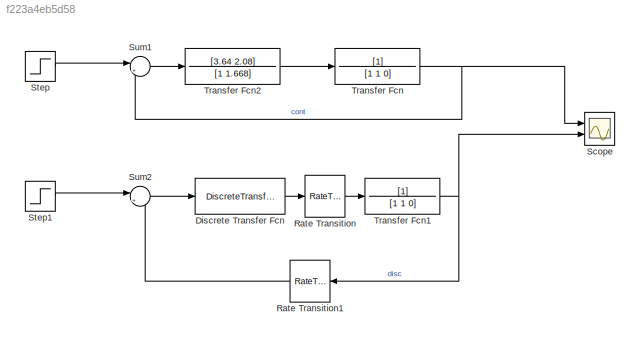
MODEL slx_f223a4eb5d58
KIND model
CONFIG AbsTol = auto
CONFIG EnableMultiTasking = off
CONFIG FixedStep = auto
CONFIG MaxStep = auto
CONFIG MinStep = auto
CONFIG RelTol = 1e-3
CONFIG SampleTimeConstraint = Unconstrained
CONFIG SolverName = VariableStepAuto
CONFIG StartTime = 0.0
CONFIG StopTime = 10.0
BLOCK [DiscreteTransferFcn] Discrete Transfer Fcn
  Denominator = [Cd.den{:}]
  InputPortMap = u0
  Numerator = [Cd.num{:}]
  Ports = [1, 1]
BLOCK [RateTransition] Rate Transition
  Integrity = off
  OutPortSampleTimeOpt = Inherit
BLOCK [RateTransition] Rate Transition1
  NameLocation = top
  OutPortSampleTime = 1/f
BLOCK [Scope] Scope
  Floating = off
  NumInputPorts = 2
  Ports = [2]
  ScopeSpecificationString = Simulink.scopes.TimeScopeBlockCfg('CurrentConfiguration', extmgr.ConfigurationSet(extmgr.Configuration('Core','General UI',true,'FigureColor',[1 1 1]),extmgr.Configuration('Core','Source UI',true),extmgr.Configuration('Sources','WiredSimulink',true),extmgr.Configuration('Visuals','Time Domain',true,'SerializedDisplays',{struct('MinYLimReal','-0.13998','MaxYLimReal','1.25982','YLabelReal','','MinYL...<+1406ch>
BLOCK [Step] Step
  SampleTime = 0
BLOCK [Step] Step1
  SampleTime = 1/f
BLOCK [Sum] Sum1
  Inputs = |+-
  Ports = [2, 1]
BLOCK [Sum] Sum2
  Inputs = |+-
  Ports = [2, 1]
BLOCK [TransferFcn] Transfer Fcn
  Denominator = [1 1 0]
BLOCK [TransferFcn] Transfer Fcn1
  Denominator = [1 1 0]
BLOCK [TransferFcn] Transfer Fcn2
  Denominator = [1 1.668]
  Numerator = [3.64 2.08]
LINE Discrete Transfer Fcn:1 -> Rate Transition:1
LINE Rate Transition1:1 -> Sum2:2
LINE Rate Transition:1 -> Transfer Fcn1:1
LINE Step1:1 -> Sum2:1
LINE Step:1 -> Sum1:1
LINE Sum1:1 -> Transfer Fcn2:1
LINE Sum2:1 -> Discrete Transfer Fcn:1
NET Transfer Fcn1:1 -> Rate Transition1:1, Scope:2
LINE Transfer Fcn2:1 -> Transfer Fcn:1
NET Transfer Fcn:1 -> Scope:1, Sum1:2
note: NET lines group one-source signal fan-out (src -> all destinations, sorted); 1:1 wires keep LINE
